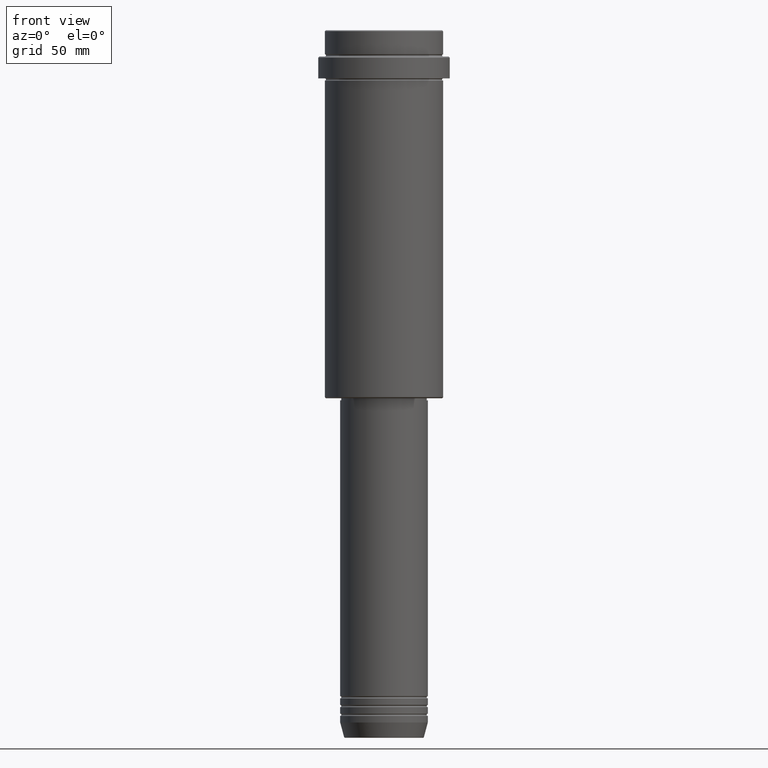
[diagram: clean part render]
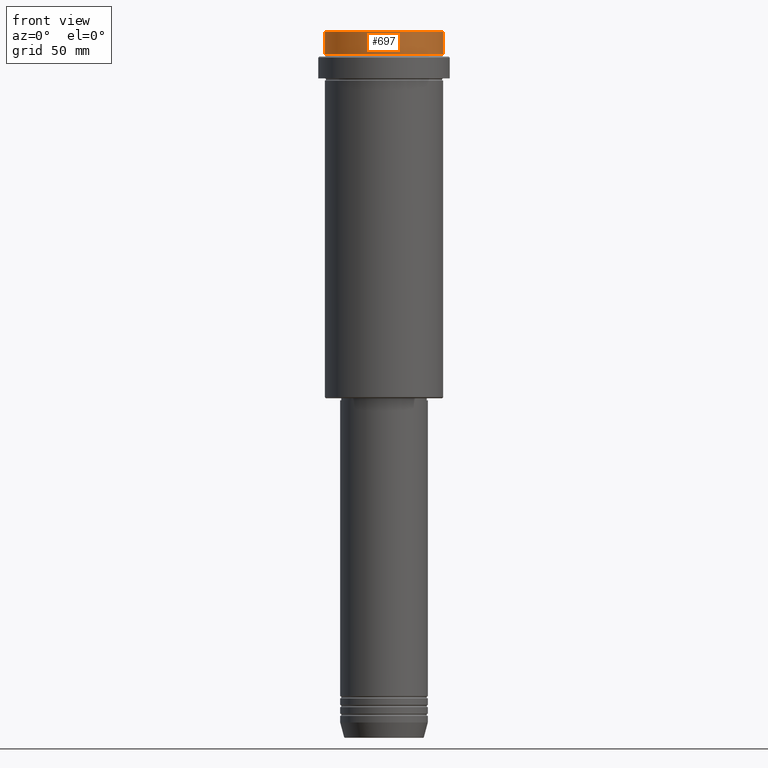
[diagram: same view with one face highlighted and labeled with its STEP entity id]
A machine part, front view. The second image highlights one B-rep face of the part: STEP entity #697.
In plain terms, the highlighted cylindrical surface (partial cylindrical patch) has radius 27 mm, axis along (-0, -0, 1).
Its self-contained STEP definition (entity closure, byte-faithful):
#9 = CARTESIAN_POINT ( 'NONE',  ( 26.99999999999999645, 0.000000000000000000, -11.00000000000000178 ) ) ;
#91 = ORIENTED_EDGE ( 'NONE', *, *, #1242, .T. ) ;
#105 = FACE_OUTER_BOUND ( 'NONE', #1296, .T. ) ;
#108 = EDGE_CURVE ( 'NONE', #1178, #201, #665, .T. ) ;
#127 = DIRECTION ( 'NONE',  ( -0.000000000000000000, -0.000000000000000000, 1.000000000000000000 ) ) ;
#201 = VERTEX_POINT ( 'NONE', #404 ) ;
#258 = AXIS2_PLACEMENT_3D ( 'NONE', #995, #127, #897 ) ;
#304 = CARTESIAN_POINT ( 'NONE',  ( -26.99999999999999645, 3.306546357697853339E-15, -11.00000000000000178 ) ) ;
#404 = CARTESIAN_POINT ( 'NONE',  ( -26.99999999999999645, 3.306546357697853339E-15, -0.5000000000000038858 ) ) ;
#424 = DIRECTION ( 'NONE',  ( -0.000000000000000000, -0.000000000000000000, 1.000000000000000000 ) ) ;
#497 = ORIENTED_EDGE ( 'NONE', *, *, #1248, .T. ) ;
#510 = EDGE_CURVE ( 'NONE', #900, #645, #770, .T. ) ;
#550 = AXIS2_PLACEMENT_3D ( 'NONE', #967, #746, #757 ) ;
#563 = CYLINDRICAL_SURFACE ( 'NONE', #258, 26.99999999999999645 ) ;
#645 = VERTEX_POINT ( 'NONE', #766 ) ;
#665 = LINE ( 'NONE', #680, #1181 ) ;
#680 = CARTESIAN_POINT ( 'NONE',  ( -26.99999999999999645, 3.306546357697853339E-15, 0.000000000000000000 ) ) ;
#697 = ADVANCED_FACE ( 'NONE', ( #105 ), #563, .T. ) ;
#746 = DIRECTION ( 'NONE',  ( 0.000000000000000000, 0.000000000000000000, -1.000000000000000000 ) ) ;
#757 = DIRECTION ( 'NONE',  ( 1.000000000000000000, 0.000000000000000000, 0.000000000000000000 ) ) ;
#766 = CARTESIAN_POINT ( 'NONE',  ( 26.99999999999999645, 0.000000000000000000, -0.5000000000000038858 ) ) ;
#770 = LINE ( 'NONE', #791, #960 ) ;
#777 = DIRECTION ( 'NONE',  ( -0.000000000000000000, -0.000000000000000000, 1.000000000000000000 ) ) ;
#779 = AXIS2_PLACEMENT_3D ( 'NONE', #1071, #424, #1194 ) ;
#791 = CARTESIAN_POINT ( 'NONE',  ( 26.99999999999999645, 0.000000000000000000, 0.000000000000000000 ) ) ;
#885 = DIRECTION ( 'NONE',  ( -0.000000000000000000, -0.000000000000000000, 1.000000000000000000 ) ) ;
#897 = DIRECTION ( 'NONE',  ( 1.000000000000000000, 0.000000000000000000, 0.000000000000000000 ) ) ;
#900 = VERTEX_POINT ( 'NONE', #9 ) ;
#960 = VECTOR ( 'NONE', #885, 1000.000000000000000 ) ;
#967 = CARTESIAN_POINT ( 'NONE',  ( 0.000000000000000000, 0.000000000000000000, -0.5000000000000038858 ) ) ;
#995 = CARTESIAN_POINT ( 'NONE',  ( 0.000000000000000000, 0.000000000000000000, 0.000000000000000000 ) ) ;
#1049 = ORIENTED_EDGE ( 'NONE', *, *, #108, .F. ) ;
#1071 = CARTESIAN_POINT ( 'NONE',  ( 0.000000000000000000, 0.000000000000000000, -11.00000000000000178 ) ) ;
#1135 = ORIENTED_EDGE ( 'NONE', *, *, #510, .T. ) ;
#1165 = CIRCLE ( 'NONE', #550, 26.99999999999999645 ) ;
#1178 = VERTEX_POINT ( 'NONE', #304 ) ;
#1181 = VECTOR ( 'NONE', #777, 1000.000000000000000 ) ;
#1194 = DIRECTION ( 'NONE',  ( 1.000000000000000000, 0.000000000000000000, 0.000000000000000000 ) ) ;
#1242 = EDGE_CURVE ( 'NONE', #645, #201, #1165, .T. ) ;
#1248 = EDGE_CURVE ( 'NONE', #1178, #900, #1352, .T. ) ;
#1296 = EDGE_LOOP ( 'NONE', ( #1049, #497, #1135, #91 ) ) ;
#1352 = CIRCLE ( 'NONE', #779, 26.99999999999999645 ) ;